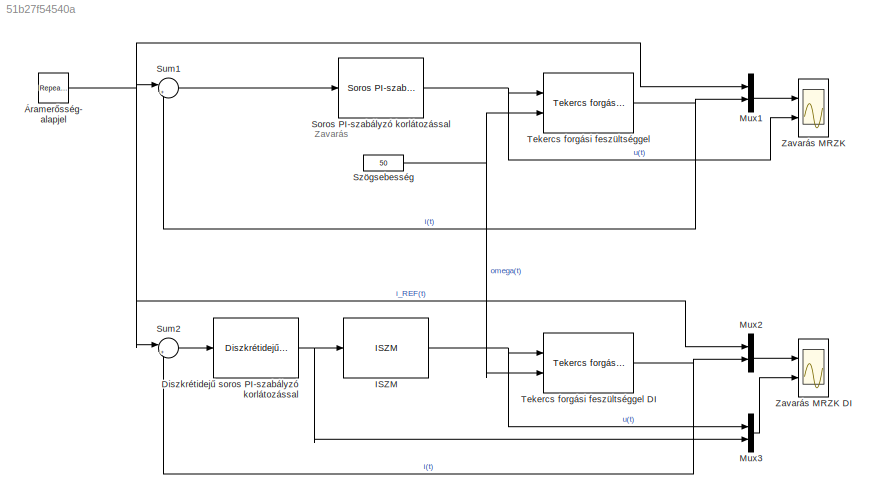
MODEL slx_51b27f54540a
KIND model
CONFIG InitFcn = % Modellparaméterek\nR = 250e-3;\nL = 10e-3;\nPsi_0 = 0.5e-3;\n\ni_0 = 0;\ntheta_0 = 0;\n\n% Rendszerparaméterek\nK = 1/R;\ntau = L/R;\n\n% PI-hangolás\ntau_CL = tau/25;\nxi_CL = 1;\n\nK_PI = (2*xi_CL*tau - tau_CL)/(K*tau_CL);\nT_I = (2*xi_CL*tau - tau_CL)*tau_CL/tau;
BLOCK [Reference] Diszkrétidejű soros PI-szabályzó korlátozással  REF=RI_MK/Diszkrétidejű soros PI-szabályzó korlátozással
  K_PI = K_PI
  L_L = -5
  L_U = 5
  Ports = [1, 1]
  SourceBlock = RI_MK/Diszkrétidejű soros PI-szabályzó korlátozással
  SourceType = Soros PI-szabályzó
  T_I = T_I
  T_S = 1/10000/2
  T_T = T_I
BLOCK [Reference] ISZM  REF=RI_MK/ISZM
  Ports = [1, 1]
  SourceBlock = RI_MK/ISZM
  SourceType = Impulzusszélesség-modulátor
  T_S = 1e-6
  U_T = 5
  f_ISZM = 10000
BLOCK [Mux] Mux1
  DisplayOption = bar
  Inputs = 2
  Ports = [2, 1]
BLOCK [Mux] Mux2
  DisplayOption = bar
  Inputs = 2
  Ports = [2, 1]
BLOCK [Mux] Mux3
  DisplayOption = bar
  Inputs = 2
  Ports = [2, 1]
BLOCK [Reference] Soros PI-szabályzó korlátozással  REF=RI_MK/Soros PI-szabályzó korlátozással
  K_PI = K_PI
  L_L = -5
  L_U = 5
  Ports = [1, 1]
  SourceBlock = RI_MK/Soros PI-szabályzó korlátozással
  SourceType = Soros PI-szabályzó
  T_I = T_I
  T_T = T_I
BLOCK [Sum] Sum1
  IconShape = round
  InputSameDT = off
  Inputs = |+-
  OutDataTypeStr = Inherit: Inherit via internal rule
  Ports = [2, 1]
  SaturateOnIntegerOverflow = off
BLOCK [Sum] Sum2
  IconShape = round
  InputSameDT = off
  Inputs = |+-
  OutDataTypeStr = Inherit: Inherit via internal rule
  Ports = [2, 1]
  SaturateOnIntegerOverflow = off
BLOCK [Constant] Szögsebesség
  Value = 50
BLOCK [Reference] Tekercs forgási feszültséggel  REF=RI_MK/Tekercs forgási feszültséggel
  L = L
  Ports = [2, 1]
  Psi_0 = Psi_0
  R = R
  SourceBlock = RI_MK/Tekercs forgási feszültséggel
  SourceType = Tekercs forgási feszültséggel
  i_0 = i_0
  theta_0 = theta_0
BLOCK [Reference] Tekercs forgási feszültséggel DI  REF=RI_MK/Tekercs forgási feszültséggel
  L = L
  Ports = [2, 1]
  Psi_0 = Psi_0
  R = R
  SourceBlock = RI_MK/Tekercs forgási feszültséggel
  SourceType = Tekercs forgási feszültséggel
  i_0 = i_0
  theta_0 = theta_0
BLOCK [Scope] Zavarás MRZK
  DataFormat = StructureWithTime
  Floating = off
  LegendLocations = 0.86856     0.91965     0.10021    0.036999\n0.89253     0.46339      0.0762    0.020898
  LimitDataPoints = off
  NumInputPorts = 2
  Ports = [2]
  SampleTime = 0
  SaveName = ScopeData1
  ShowLegends = on
  YMax = 5~5
  YMin = -5~-5
  ZoomMode = xonly
BLOCK [Scope] Zavarás MRZK DI
  DataFormat = StructureWithTime
  Floating = off
  LegendLocations = 0.8683      0.9248     0.10021    0.036999\n0.68667     0.44896     0.28184    0.036999
  LimitDataPoints = off
  NumInputPorts = 2
  Ports = [2]
  SampleTime = 0
  ShowLegends = on
  YMax = 5~5
  YMin = -5~-5
  ZoomMode = xonly
BLOCK [Reference] Áramerősség- alapjel  REF=simulink/Sources/Repeating
Sequence
Stair
  ConRadixGroup = Best Precision: Vector-wise
  LockScale = off
  OutDataType = fixdt(0,8)
  OutDataTypeStr = double
  OutMax = []
  OutMin = []
  OutScaling = 2^-12
  OutValues = [300, 100, -400, 200, -100]*1e-3
  OutputDataTypeScalingMode = double
  Ports = [0, 1]
  SourceBlock = simulink/Sources/Repeating\nSequence\nStair
  SourceType = Repeating Sequence Stair
  tsamp = L/R*5
ANNOTATION (root): Zavarás
NET Diszkrétidejű soros PI-szabályzó korlátozással:1 -> ISZM:1, Mux3:2
NET ISZM:1 -> Mux3:1, Tekercs forgási feszültséggel DI:1
LINE Mux1:1 -> Zavarás MRZK:1
LINE Mux2:1 -> Zavarás MRZK DI:1
LINE Mux3:1 -> Zavarás MRZK DI:2
NET Soros PI-szabályzó korlátozással:1 -> Tekercs forgási feszültséggel:1, Zavarás MRZK:2
LINE Sum1:1 -> Soros PI-szabályzó korlátozással:1
LINE Sum2:1 -> Diszkrétidejű soros PI-szabályzó korlátozással:1
NET Szögsebesség:1 -> Tekercs forgási feszültséggel DI:2, Tekercs forgási feszültséggel:2
NET Tekercs forgási feszültséggel DI:1 -> Mux2:2, Sum2:2
NET Tekercs forgási feszültséggel:1 -> Mux1:2, Sum1:2
NET Áramerősség- alapjel:1 -> Mux1:1, Mux2:1, Sum1:1, Sum2:1
note: NET lines group one-source signal fan-out (src -> all destinations, sorted); 1:1 wires keep LINE
